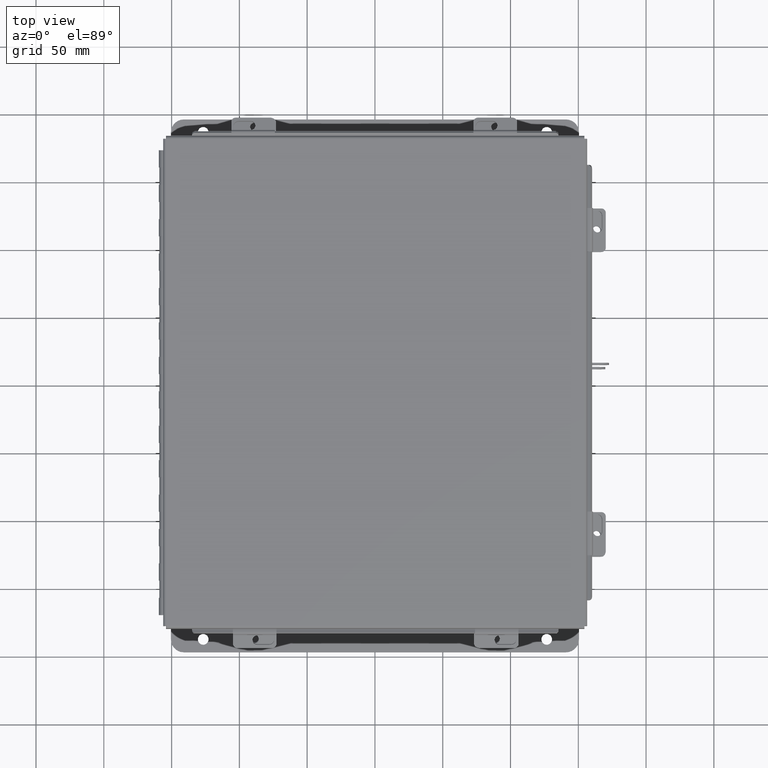
[diagram: clean part render]
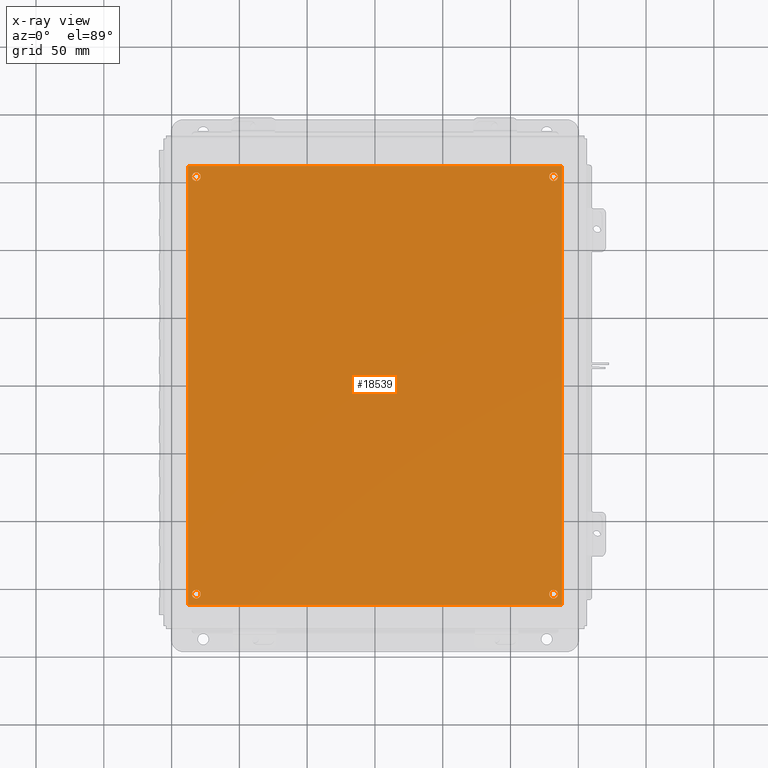
[diagram: x-ray — body ghosted, one internal face saturated and labeled with its STEP entity id]
A machine part, top view, then the same camera in x-ray: the body is ghosted and one INTERNAL B-rep face — a face not visible from any outside direction — is saturated and labeled: STEP entity #18539.
In plain terms, the highlighted planar face has unit normal (0, 0, -1).
Its self-contained STEP definition (entity closure, byte-faithful):
#70 = DIRECTION ( 'NONE',  ( -1.000000000000000000, 0.0000000000000000000, 0.0000000000000000000 ) ) ;
#200 = CARTESIAN_POINT ( 'NONE',  ( 0.3750000000000020000, 0.3120000000000015000, -0.07470000000000003000 ) ) ;
#213 = CARTESIAN_POINT ( 'NONE',  ( 0.0000000000000000000, 0.0000000000000000000, -0.07470000000000003000 ) ) ;
#236 = LINE ( 'NONE', #213, #15358 ) ;
#416 = CIRCLE ( 'NONE', #7026, 0.1250000000000000600 ) ;
#483 = DIRECTION ( 'NONE',  ( 0.0000000000000000000, 0.0000000000000000000, -1.000000000000000000 ) ) ;
#901 = AXIS2_PLACEMENT_3D ( 'NONE', #17602, #8858, #70 ) ;
#909 = DIRECTION ( 'NONE',  ( -1.000000000000000000, 0.0000000000000000000, 0.0000000000000000000 ) ) ;
#931 = FACE_BOUND ( 'NONE', #15280, .T. ) ;
#1723 = AXIS2_PLACEMENT_3D ( 'NONE', #4744, #5116, #909 ) ;
#1874 = AXIS2_PLACEMENT_3D ( 'NONE', #2812, #13022, #4250 ) ;
#2033 = CARTESIAN_POINT ( 'NONE',  ( 0.1249999999999997900, 12.43799999999999700, -0.07470000000000003000 ) ) ;
#2245 = CARTESIAN_POINT ( 'NONE',  ( 10.50000000000000200, 12.43799999999999900, -0.07470000000000003000 ) ) ;
#2465 = CARTESIAN_POINT ( 'NONE',  ( 0.0000000000000000000, 12.75000000000000000, -0.07470000000000003000 ) ) ;
#2484 = DIRECTION ( 'NONE',  ( -0.0000000000000000000, -1.000000000000000000, -0.0000000000000000000 ) ) ;
#2812 = CARTESIAN_POINT ( 'NONE',  ( 0.2499999999999998100, 12.43799999999999700, -0.07470000000000003000 ) ) ;
#2887 = EDGE_CURVE ( 'NONE', #8551, #6408, #7625, .T. ) ;
#2914 = DIRECTION ( 'NONE',  ( -0.0000000000000000000, -0.0000000000000000000, 1.000000000000000000 ) ) ;
#3002 = CIRCLE ( 'NONE', #7303, 0.1249999999999993500 ) ;
#3108 = ORIENTED_EDGE ( 'NONE', *, *, #10930, .T. ) ;
#3157 = AXIS2_PLACEMENT_3D ( 'NONE', #16651, #483, #9371 ) ;
#3191 = VERTEX_POINT ( 'NONE', #3324 ) ;
#3205 = VERTEX_POINT ( 'NONE', #18359 ) ;
#3324 = CARTESIAN_POINT ( 'NONE',  ( 0.1250000000000019200, 0.3120000000000015000, -0.07470000000000003000 ) ) ;
#3930 = VERTEX_POINT ( 'NONE', #10959 ) ;
#4028 = EDGE_CURVE ( 'NONE', #4232, #8551, #236, .T. ) ;
#4232 = VERTEX_POINT ( 'NONE', #2465 ) ;
#4250 = DIRECTION ( 'NONE',  ( -1.000000000000000000, 0.0000000000000000000, 0.0000000000000000000 ) ) ;
#4338 = CIRCLE ( 'NONE', #901, 0.1250000000000000000 ) ;
#4358 = FACE_BOUND ( 'NONE', #17349, .T. ) ;
#4476 = CARTESIAN_POINT ( 'NONE',  ( 10.62500000000000200, 12.43799999999999900, -0.07470000000000003000 ) ) ;
#4569 = DIRECTION ( 'NONE',  ( -0.0000000000000000000, -0.0000000000000000000, 1.000000000000000000 ) ) ;
#4645 = CIRCLE ( 'NONE', #14559, 0.1249999999999993500 ) ;
#4744 = CARTESIAN_POINT ( 'NONE',  ( 0.2500000000000020000, 0.3120000000000015000, -0.07470000000000003000 ) ) ;
#5116 = DIRECTION ( 'NONE',  ( -0.0000000000000000000, -0.0000000000000000000, 1.000000000000000000 ) ) ;
#5939 = DIRECTION ( 'NONE',  ( -1.000000000000000000, 0.0000000000000000000, 0.0000000000000000000 ) ) ;
#6205 = VERTEX_POINT ( 'NONE', #2245 ) ;
#6229 = VERTEX_POINT ( 'NONE', #11791 ) ;
#6255 = CARTESIAN_POINT ( 'NONE',  ( 10.87500000000000000, 0.0000000000000000000, -0.07470000000000003000 ) ) ;
#6339 = CARTESIAN_POINT ( 'NONE',  ( 0.2500000000000020000, 0.3120000000000015000, -0.07470000000000003000 ) ) ;
#6408 = VERTEX_POINT ( 'NONE', #6255 ) ;
#6439 = CIRCLE ( 'NONE', #6888, 0.1249999999999993500 ) ;
#6460 = EDGE_CURVE ( 'NONE', #3191, #17333, #12677, .T. ) ;
#6618 = ORIENTED_EDGE ( 'NONE', *, *, #17721, .T. ) ;
#6888 = AXIS2_PLACEMENT_3D ( 'NONE', #4476, #14736, #5939 ) ;
#6899 = ORIENTED_EDGE ( 'NONE', *, *, #6460, .T. ) ;
#6999 = ORIENTED_EDGE ( 'NONE', *, *, #16232, .T. ) ;
#7026 = AXIS2_PLACEMENT_3D ( 'NONE', #6339, #16588, #7853 ) ;
#7149 = VECTOR ( 'NONE', #14742, 39.37007874015748100 ) ;
#7206 = ORIENTED_EDGE ( 'NONE', *, *, #11772, .F. ) ;
#7303 = AXIS2_PLACEMENT_3D ( 'NONE', #11657, #2914, #13120 ) ;
#7430 = CARTESIAN_POINT ( 'NONE',  ( 10.62500000000000400, 0.3120000000000036600, -0.07470000000000003000 ) ) ;
#7586 = CIRCLE ( 'NONE', #1874, 0.1250000000000000000 ) ;
#7625 = LINE ( 'NONE', #9878, #11509 ) ;
#7853 = DIRECTION ( 'NONE',  ( -1.000000000000000000, 0.0000000000000000000, 0.0000000000000000000 ) ) ;
#8329 = VERTEX_POINT ( 'NONE', #17513 ) ;
#8449 = CARTESIAN_POINT ( 'NONE',  ( 10.87500000000000000, 12.75000000000000000, -0.07470000000000003000 ) ) ;
#8551 = VERTEX_POINT ( 'NONE', #10673 ) ;
#8589 = ORIENTED_EDGE ( 'NONE', *, *, #16674, .T. ) ;
#8858 = DIRECTION ( 'NONE',  ( -0.0000000000000000000, -0.0000000000000000000, 1.000000000000000000 ) ) ;
#8901 = DIRECTION ( 'NONE',  ( -1.000000000000000000, 0.0000000000000000000, 0.0000000000000000000 ) ) ;
#8925 = CARTESIAN_POINT ( 'NONE',  ( 0.0000000000000000000, 12.75000000000000000, -0.07470000000000003000 ) ) ;
#9087 = EDGE_CURVE ( 'NONE', #18793, #4232, #11496, .T. ) ;
#9371 = DIRECTION ( 'NONE',  ( -1.000000000000000000, 0.0000000000000000000, -0.0000000000000000000 ) ) ;
#9710 = CIRCLE ( 'NONE', #13284, 0.1249999999999993500 ) ;
#9878 = CARTESIAN_POINT ( 'NONE',  ( 0.0000000000000000000, 0.0000000000000000000, -0.07470000000000003000 ) ) ;
#10095 = EDGE_CURVE ( 'NONE', #6229, #3930, #3002, .T. ) ;
#10380 = EDGE_LOOP ( 'NONE', ( #13243, #19004 ) ) ;
#10673 = CARTESIAN_POINT ( 'NONE',  ( 0.0000000000000000000, 0.0000000000000000000, -0.07470000000000003000 ) ) ;
#10695 = ORIENTED_EDGE ( 'NONE', *, *, #4028, .F. ) ;
#10930 = EDGE_CURVE ( 'NONE', #17333, #3191, #416, .T. ) ;
#10959 = CARTESIAN_POINT ( 'NONE',  ( 10.50000000000000400, 0.3120000000000036600, -0.07470000000000003000 ) ) ;
#11394 = EDGE_LOOP ( 'NONE', ( #3108, #6899 ) ) ;
#11496 = LINE ( 'NONE', #8925, #7149 ) ;
#11509 = VECTOR ( 'NONE', #15161, 39.37007874015748100 ) ;
#11657 = CARTESIAN_POINT ( 'NONE',  ( 10.62500000000000400, 0.3120000000000036600, -0.07470000000000003000 ) ) ;
#11772 = EDGE_CURVE ( 'NONE', #6408, #18793, #13002, .T. ) ;
#11791 = CARTESIAN_POINT ( 'NONE',  ( 10.75000000000000400, 0.3120000000000036600, -0.07470000000000003000 ) ) ;
#12022 = ORIENTED_EDGE ( 'NONE', *, *, #10095, .T. ) ;
#12172 = FACE_OUTER_BOUND ( 'NONE', #15143, .T. ) ;
#12677 = CIRCLE ( 'NONE', #1723, 0.1250000000000000600 ) ;
#13002 = LINE ( 'NONE', #14034, #16424 ) ;
#13022 = DIRECTION ( 'NONE',  ( -0.0000000000000000000, -0.0000000000000000000, 1.000000000000000000 ) ) ;
#13103 = EDGE_CURVE ( 'NONE', #18534, #8329, #4338, .T. ) ;
#13120 = DIRECTION ( 'NONE',  ( -1.000000000000000000, 0.0000000000000000000, 0.0000000000000000000 ) ) ;
#13243 = ORIENTED_EDGE ( 'NONE', *, *, #18885, .T. ) ;
#13284 = AXIS2_PLACEMENT_3D ( 'NONE', #7430, #17649, #8901 ) ;
#13372 = CARTESIAN_POINT ( 'NONE',  ( 10.62500000000000200, 12.43799999999999900, -0.07470000000000003000 ) ) ;
#14034 = CARTESIAN_POINT ( 'NONE',  ( 10.87500000000000000, 0.0000000000000000000, -0.07470000000000003000 ) ) ;
#14559 = AXIS2_PLACEMENT_3D ( 'NONE', #13372, #4569, #14849 ) ;
#14736 = DIRECTION ( 'NONE',  ( -0.0000000000000000000, -0.0000000000000000000, 1.000000000000000000 ) ) ;
#14742 = DIRECTION ( 'NONE',  ( -1.000000000000000000, -0.0000000000000000000, -0.0000000000000000000 ) ) ;
#14771 = ORIENTED_EDGE ( 'NONE', *, *, #2887, .F. ) ;
#14849 = DIRECTION ( 'NONE',  ( -1.000000000000000000, 0.0000000000000000000, 0.0000000000000000000 ) ) ;
#15143 = EDGE_LOOP ( 'NONE', ( #10695, #18048, #7206, #14771 ) ) ;
#15161 = DIRECTION ( 'NONE',  ( 1.000000000000000000, 0.0000000000000000000, 0.0000000000000000000 ) ) ;
#15226 = PLANE ( 'NONE',  #3157 ) ;
#15280 = EDGE_LOOP ( 'NONE', ( #6999, #6618 ) ) ;
#15358 = VECTOR ( 'NONE', #2484, 39.37007874015748100 ) ;
#16048 = FACE_BOUND ( 'NONE', #11394, .T. ) ;
#16232 = EDGE_CURVE ( 'NONE', #3205, #6205, #4645, .T. ) ;
#16424 = VECTOR ( 'NONE', #16964, 39.37007874015748100 ) ;
#16491 = FACE_BOUND ( 'NONE', #10380, .T. ) ;
#16588 = DIRECTION ( 'NONE',  ( -0.0000000000000000000, -0.0000000000000000000, 1.000000000000000000 ) ) ;
#16651 = CARTESIAN_POINT ( 'NONE',  ( 0.0000000000000000000, 0.0000000000000000000, -0.07470000000000003000 ) ) ;
#16674 = EDGE_CURVE ( 'NONE', #3930, #6229, #9710, .T. ) ;
#16964 = DIRECTION ( 'NONE',  ( 0.0000000000000000000, 1.000000000000000000, 0.0000000000000000000 ) ) ;
#17333 = VERTEX_POINT ( 'NONE', #200 ) ;
#17349 = EDGE_LOOP ( 'NONE', ( #12022, #8589 ) ) ;
#17513 = CARTESIAN_POINT ( 'NONE',  ( 0.3749999999999998300, 12.43799999999999700, -0.07470000000000003000 ) ) ;
#17602 = CARTESIAN_POINT ( 'NONE',  ( 0.2499999999999998100, 12.43799999999999700, -0.07470000000000003000 ) ) ;
#17649 = DIRECTION ( 'NONE',  ( -0.0000000000000000000, -0.0000000000000000000, 1.000000000000000000 ) ) ;
#17721 = EDGE_CURVE ( 'NONE', #6205, #3205, #6439, .T. ) ;
#18048 = ORIENTED_EDGE ( 'NONE', *, *, #9087, .F. ) ;
#18359 = CARTESIAN_POINT ( 'NONE',  ( 10.75000000000000200, 12.43799999999999900, -0.07470000000000003000 ) ) ;
#18534 = VERTEX_POINT ( 'NONE', #2033 ) ;
#18539 = ADVANCED_FACE ( 'NONE', ( #16048, #4358, #931, #16491, #12172 ), #15226, .T. ) ;
#18793 = VERTEX_POINT ( 'NONE', #8449 ) ;
#18885 = EDGE_CURVE ( 'NONE', #8329, #18534, #7586, .T. ) ;
#19004 = ORIENTED_EDGE ( 'NONE', *, *, #13103, .T. ) ;